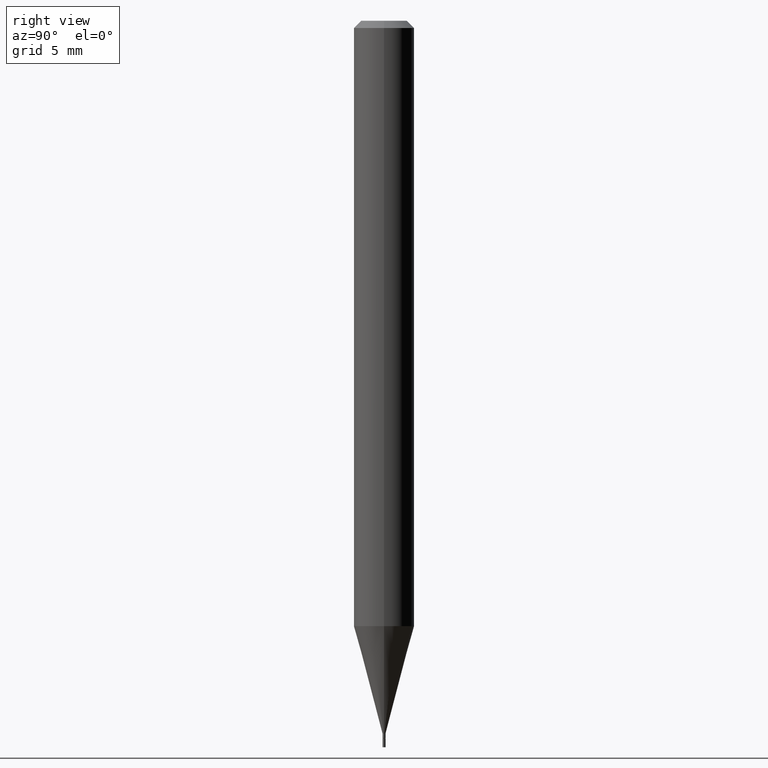
[diagram: clean part render]
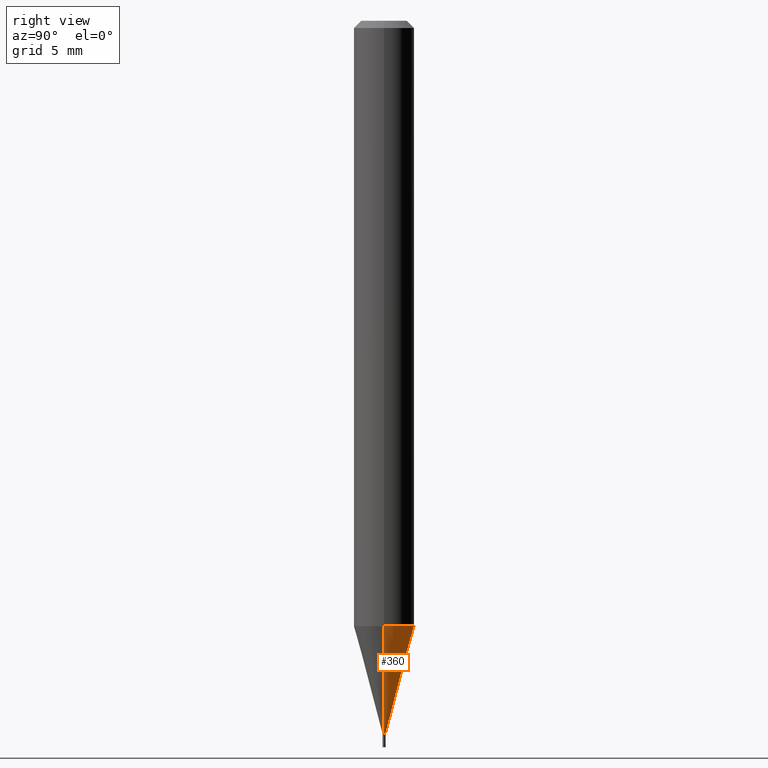
[diagram: same view with one face highlighted and labeled with its STEP entity id]
A machine part, right view. The second image highlights one B-rep face of the part: STEP entity #360.
In plain terms, the highlighted conical surface has half-angle 15 deg.
Its self-contained STEP definition (entity closure, byte-faithful):
#8 = LINE ( 'NONE', #77, #256 ) ;
#63 = CARTESIAN_POINT ( 'NONE',  ( 3.599730082704520905E-29, -5.139460530777110821E-15, -1.471999999999999975 ) ) ;
#77 = CARTESIAN_POINT ( 'NONE',  ( 0.002999999999999922000, -5.160409418810168864E-15, -1.471999999999999975 ) ) ;
#80 = AXIS2_PLACEMENT_3D ( 'NONE', #363, #324, #396 ) ;
#88 = DIRECTION ( 'NONE',  ( -2.445468806185136597E-29, 3.491481338843145583E-15, 1.000000000000000000 ) ) ;
#92 = ORIENTED_EDGE ( 'NONE', *, *, #348, .T. ) ;
#128 = CARTESIAN_POINT ( 'NONE',  ( 0.06250000000000000000, -4.800587745993150425E-15, -1.249942976949652174 ) ) ;
#129 = AXIS2_PLACEMENT_3D ( 'NONE', #162, #300, #410 ) ;
#157 = FACE_OUTER_BOUND ( 'NONE', #301, .T. ) ;
#162 = CARTESIAN_POINT ( 'NONE',  ( 3.599730082704520905E-29, -5.139460530777110821E-15, -1.471999999999999975 ) ) ;
#183 = EDGE_CURVE ( 'NONE', #334, #299, #427, .T. ) ;
#191 = CARTESIAN_POINT ( 'NONE',  ( -0.002999999999999922000, -5.118144248704308586E-15, -1.471999999999999975 ) ) ;
#205 = VERTEX_POINT ( 'NONE', #364 ) ;
#212 = EDGE_CURVE ( 'NONE', #409, #299, #259, .T. ) ;
#255 = DIRECTION ( 'NONE',  ( 0.2588190451025213501, 1.565188264969621968E-15, 0.9659258262890682012 ) ) ;
#256 = VECTOR ( 'NONE', #255, 39.37007874015747433 ) ;
#259 = CIRCLE ( 'NONE', #80, 0.06250000000000000000 ) ;
#262 = AXIS2_PLACEMENT_3D ( 'NONE', #63, #88, #269 ) ;
#269 = DIRECTION ( 'NONE',  ( 1.000000000000000000, -6.982962677686190980E-15, 0.000000000000000000 ) ) ;
#271 = CARTESIAN_POINT ( 'NONE',  ( -0.002999999999999922000, -4.519103808746002757E-15, -1.471999999999999975 ) ) ;
#275 = EDGE_CURVE ( 'NONE', #205, #409, #8, .T. ) ;
#299 = VERTEX_POINT ( 'NONE', #395 ) ;
#300 = DIRECTION ( 'NONE',  ( -2.445468806185136597E-29, 3.491481338843145583E-15, 1.000000000000000000 ) ) ;
#301 = EDGE_LOOP ( 'NONE', ( #92, #322, #309, #391 ) ) ;
#309 = ORIENTED_EDGE ( 'NONE', *, *, #212, .F. ) ;
#322 = ORIENTED_EDGE ( 'NONE', *, *, #183, .T. ) ;
#324 = DIRECTION ( 'NONE',  ( -2.445468806185136597E-29, 3.491481338843145583E-15, 1.000000000000000000 ) ) ;
#332 = CONICAL_SURFACE ( 'NONE', #262, 0.002999999999999922000, 0.2617993877991500740 ) ;
#334 = VERTEX_POINT ( 'NONE', #271 ) ;
#348 = EDGE_CURVE ( 'NONE', #205, #334, #435, .T. ) ;
#360 = ADVANCED_FACE ( 'NONE', ( #157 ), #332, .T. ) ;
#363 = CARTESIAN_POINT ( 'NONE',  ( 3.056696559640561437E-29, -4.364152578637758755E-15, -1.249942976949652174 ) ) ;
#364 = CARTESIAN_POINT ( 'NONE',  ( 0.002999999999999922000, -5.160409418810168864E-15, -1.471999999999999975 ) ) ;
#366 = DIRECTION ( 'NONE',  ( -0.2588190451025213501, 5.211531920934551042E-15, 0.9659258262890682012 ) ) ;
#391 = ORIENTED_EDGE ( 'NONE', *, *, #275, .F. ) ;
#395 = CARTESIAN_POINT ( 'NONE',  ( -0.06250000000000000000, -3.920063368787695350E-15, -1.249942976949652174 ) ) ;
#396 = DIRECTION ( 'NONE',  ( 1.000000000000000000, -6.982962677686270655E-15, 0.000000000000000000 ) ) ;
#409 = VERTEX_POINT ( 'NONE', #128 ) ;
#410 = DIRECTION ( 'NONE',  ( 1.000000000000000000, -6.982962677686190980E-15, 0.000000000000000000 ) ) ;
#427 = LINE ( 'NONE', #191, #460 ) ;
#435 = CIRCLE ( 'NONE', #129, 0.002999999999999922000 ) ;
#460 = VECTOR ( 'NONE', #366, 39.37007874015747433 ) ;